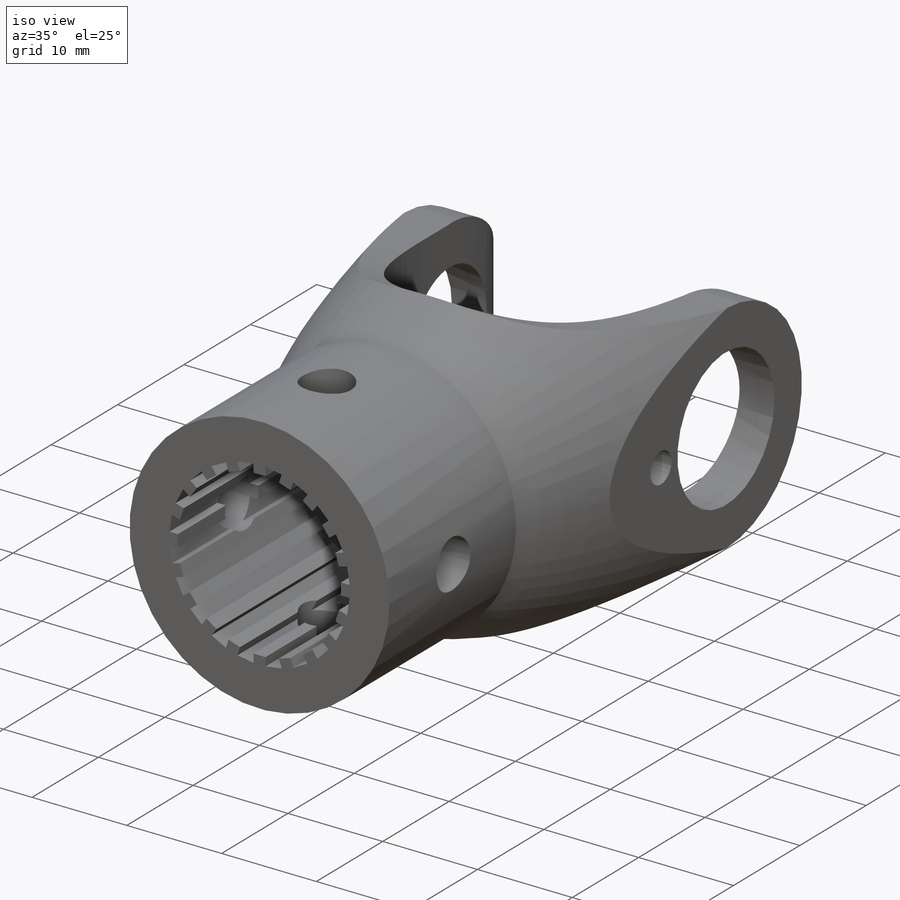
[diagram: iso view]
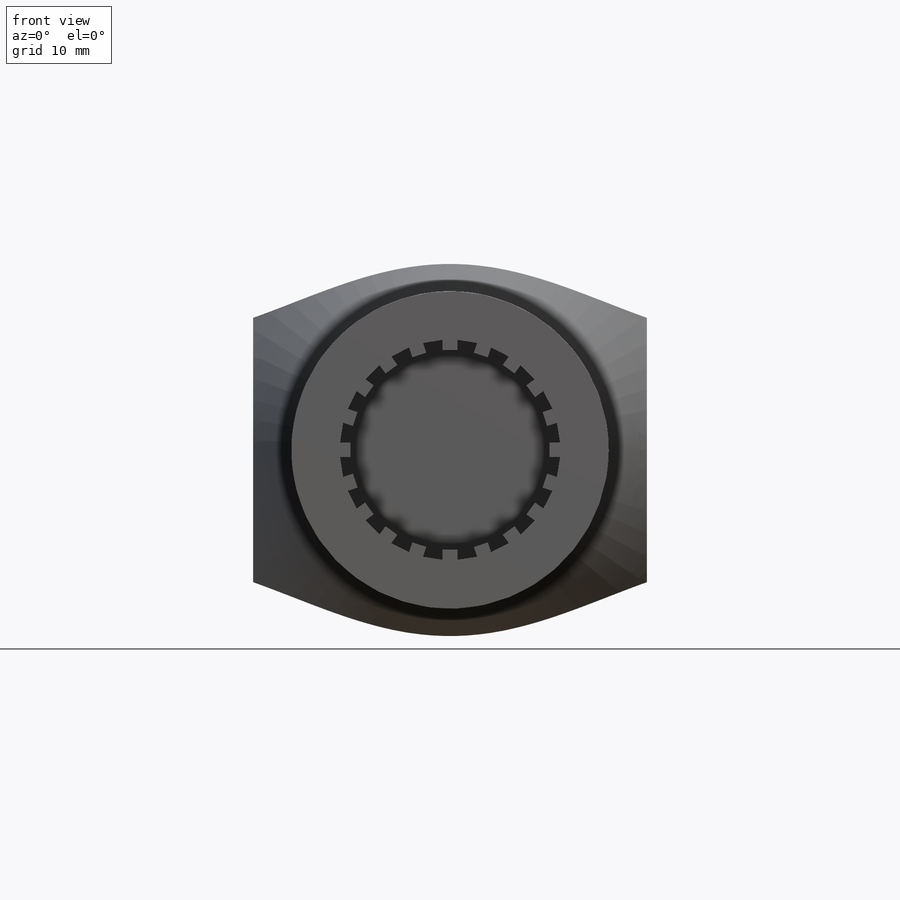
[diagram: front view]
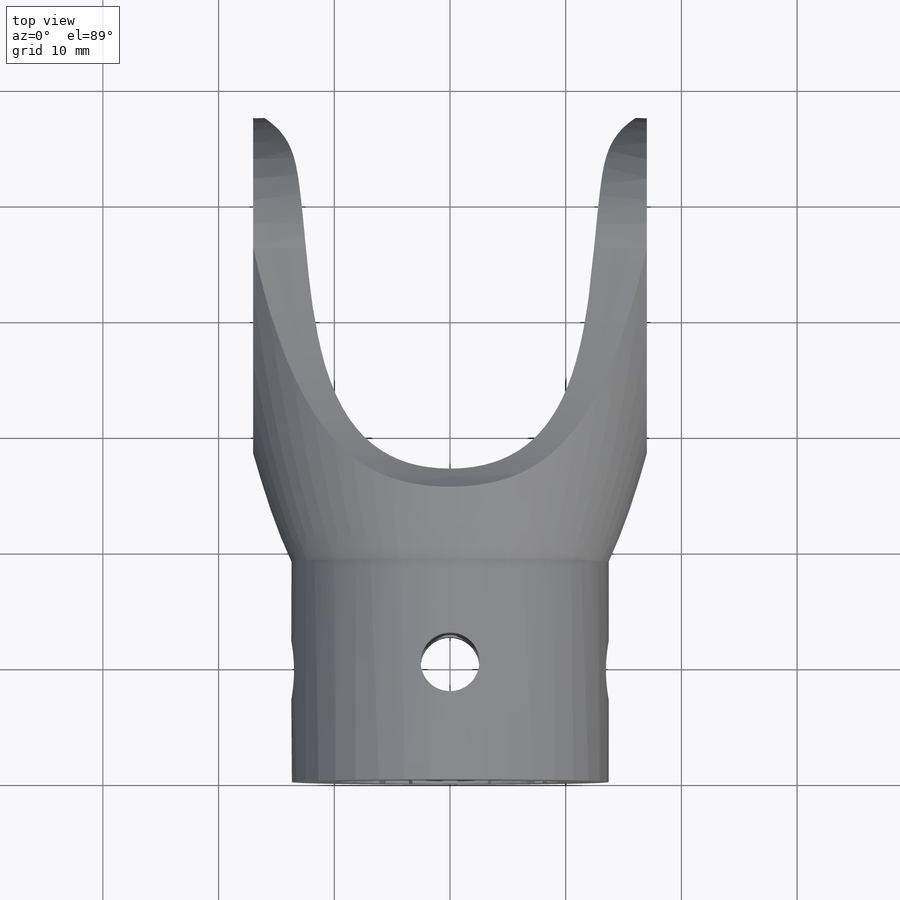
[diagram: top view]
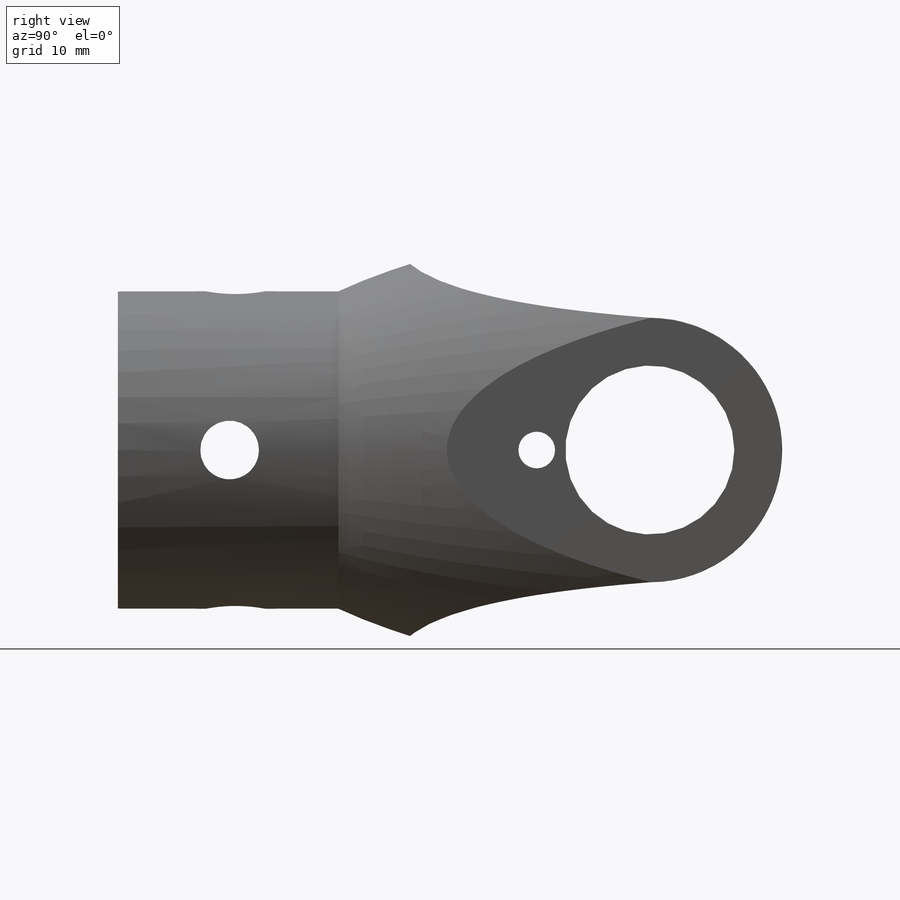
[diagram: right view]
SOLIDWORKS PART (.sldprt)
format: sldprt  version: not decoded by parser v0  size: 730,112 bytes
history: native  units: mm
features: sketch x11, cut_extrude x7, material x1, revolve x1 (+11 scaffold rows collapsed)
feature tree (31):
  scaffold x11  (default folders/planes/origin — collapsed)
  material  "Alloy Steel"
  sketch  "Sketch1"  dims[c1.D2=6.35mm c1.D1=~18.561759mm c2.D2=19.05mm c2.D1=19.05mm c3.D2=38.1mm c3.D1=72.644mm c3.D3=9.525mm c3.D4=13.716mm c3.D5=19.05mm c3.D6=~58.023844mm c3.D7=21.59mm c4.D1=40.0deg c4.D3=27.432mm]
  revolve  "Revolve3"  Angle=360deg
  sketch  "Sketch4"  dims[D3=5.08mm D1=27.051mm D2=10.16mm]
  cut_extrude  "Cut-Extrude1"  [1 undecoded]
  cut_extrude  "Cut-Extrude2"  [1 undecoded]
  sketch  "Sketch4<3>"  dims[D1=38.608mm]
  sketch  "Sketch5"  dims[D1=17.018mm]
  cut_extrude  "Cut-Extrude3"  [1 undecoded]
  cut_extrude  "Cut-Extrude4"  [1 undecoded]
  sketch  "Sketch5<4>"
  sketch  "Sketch6"
  sketch  "Sketch Picture2"  dims[D1=22.86mm D3=14.224mm D4=9.525mm D5=6.35mm D6=6.35mm D2=45.974mm D7=9.652mm D8=36.068mm]
  cut_extrude  "Cut-Extrude8"  [1 undecoded]
  sketch  "Sketch7"
  sketch  "Sketch Picture3"  dims[D1=14.605mm D3=5.08mm D5=9.525mm D7=3.175mm D2=45.974mm D4=9.652mm D6=36.195mm]
  cut_extrude  "Cut-Extrude9"  Depth=41.148mm
  sketch  "Sketch8"
  sketch  "Sketch Picture5"  dims[c1.D4=19.05mm c1.D1=19.05mm c1.D2=0.635mm c1.D3=0.889mm c2.D4=~0.773617mm c2.D1=20.0]
  cut_extrude  "Cut-Extrude10"  Depth=19.05mm
decode coverage: 10 of 19 modeling features carry decoded parameters
note: ~ marks probable driven/reference dimensions
note: 5 parameter values undecoded
summary: no parameter record found for 5 features
note: suppression state not decoded; provenance and decode notes live in map.json
